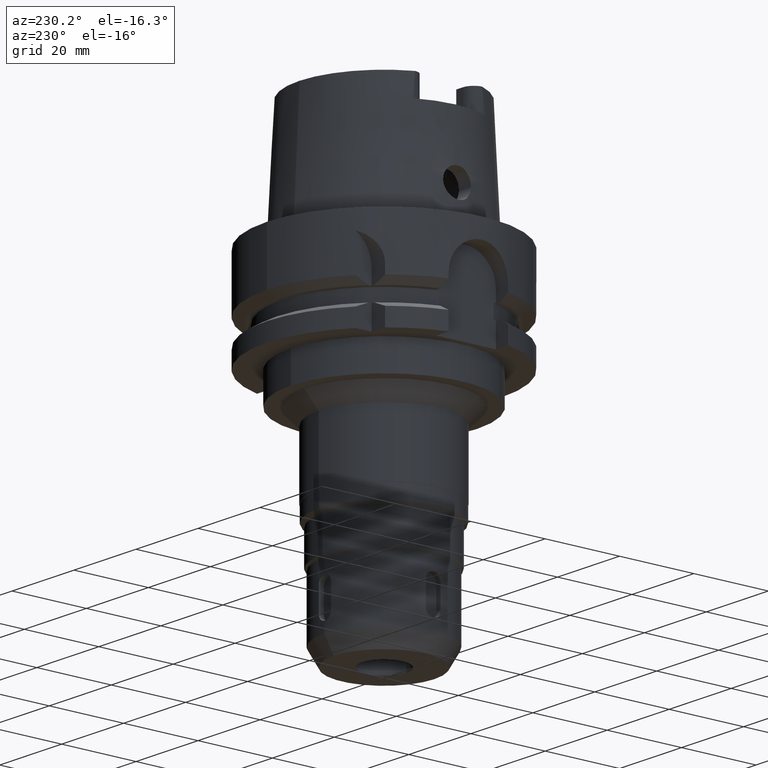
[diagram: clean part render]
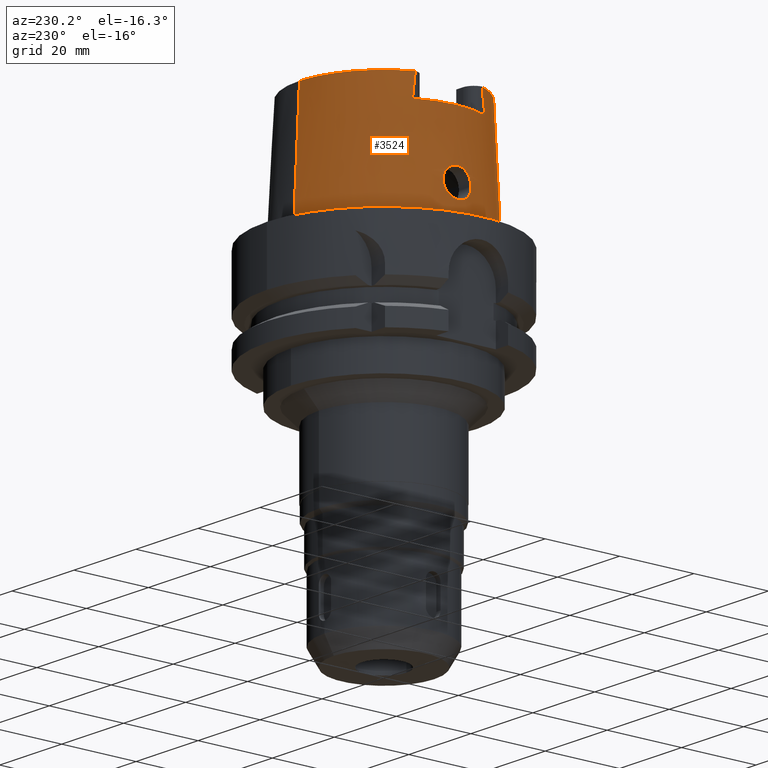
[diagram: same view with one face highlighted and labeled with its STEP entity id]
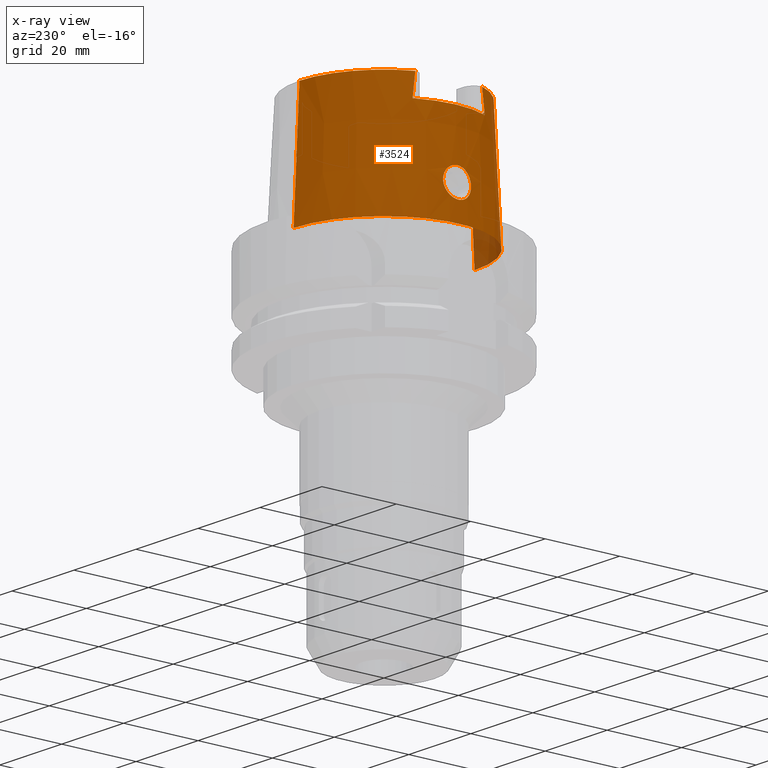
[diagram: x-ray of the same camera — body ghosted, the highlighted face saturated]
A machine part, auxiliary view. The second image highlights one B-rep face of the part: STEP entity #3524.
The next image is the same camera in x-ray: the body ghosted, the highlighted face saturated — about 3% of this face is hidden behind the body in this view.
In plain terms, the highlighted conical surface has half-angle 2.862 deg.
Its self-contained STEP definition (entity closure, byte-faithful):
#69=CARTESIAN_POINT('',(0.E0,0.E0,2.6E1));
#70=DIRECTION('',(0.E0,0.E0,-1.E0));
#71=DIRECTION('',(-9.068002397791E-1,-4.215605829967E-1,0.E0));
#72=AXIS2_PLACEMENT_3D('',#69,#70,#71);
#146=CARTESIAN_POINT('',(0.E0,0.E0,3.2E1));
#147=DIRECTION('',(0.E0,0.E0,-1.E0));
#148=DIRECTION('',(0.E0,-1.E0,0.E0));
#149=AXIS2_PLACEMENT_3D('',#146,#147,#148);
#168=CARTESIAN_POINT('',(-2.086999931532E1,-9.702216590714E0,2.6E1));
#169=CARTESIAN_POINT('',(-2.086999931532E1,-9.642048820586E0,2.650727061243E1));
#170=CARTESIAN_POINT('',(-2.087000004782E1,-9.521000158515E0,2.752034963127E1));
#171=CARTESIAN_POINT('',(-2.087000085966E1,-9.336892232922E0,2.903557625831E1));
#172=CARTESIAN_POINT('',(-2.086999796226E1,-9.212636785735E0,3.004273970224E1));
#173=CARTESIAN_POINT('',(-2.086999796226E1,-9.150006002723E0,3.054568949562E1));
#178=CARTESIAN_POINT('',(-2.086999796226E1,-9.150006002723E0,3.054568949562E1));
#179=CARTESIAN_POINT('',(-2.086999799209E1,-9.129916591506E0,3.070701481375E1));
#180=CARTESIAN_POINT('',(-2.086958253860E1,-9.090608124895E0,3.102977317762E1));
#181=CARTESIAN_POINT('',(-2.086782946572E1,-9.033594820122E0,3.151460124352E1));
#182=CARTESIAN_POINT('',(-2.086599284936E1,-8.997161997811E0,3.183814979310E1));
#183=CARTESIAN_POINT('',(-2.086492401365E1,-8.979173041315E0,3.2E1));
#188=DIRECTION('',(0.E0,-4.993926899646E-2,-9.987522562738E-1));
#189=VECTOR('',#188,3.203997768114E1);
#190=CARTESIAN_POINT('',(0.E0,-2.271498175923E1,3.2E1));
#191=LINE('',#190,#189);
#195=CARTESIAN_POINT('',(-2.086492889908E1,8.979147578632E0,3.2E1));
#196=CARTESIAN_POINT('',(-2.086599795702E1,8.997136344425E0,3.183814782322E1));
#197=CARTESIAN_POINT('',(-2.086783017122E1,9.033655975386E0,3.151459743567E1));
#198=CARTESIAN_POINT('',(-2.086958173453E1,9.090663948326E0,3.102981662359E1));
#199=CARTESIAN_POINT('',(-2.087000256094E1,9.129899807872E0,3.070693419092E1));
#200=CARTESIAN_POINT('',(-2.087000266643E1,9.149988969842E0,3.054560895604E1));
#205=CARTESIAN_POINT('',(-2.087000266643E1,9.149988969842E0,3.054560895604E1));
#206=CARTESIAN_POINT('',(-2.087000266643E1,9.212602066600E0,3.004280293648E1));
#207=CARTESIAN_POINT('',(-2.086999914860E1,9.336927771861E0,2.903562856499E1));
#208=CARTESIAN_POINT('',(-2.086999898025E1,9.521027715148E0,2.752042413741E1));
#209=CARTESIAN_POINT('',(-2.087000294700E1,9.642028220365E0,2.650729690902E1));
#210=CARTESIAN_POINT('',(-2.087000294700E1,9.702199254898E0,2.6E1));
#215=CARTESIAN_POINT('',(-2.405252611747E1,0.E0,5.25E0));
#216=CARTESIAN_POINT('',(-2.405252611747E1,-3.237039189191E-1,5.25E0));
#217=CARTESIAN_POINT('',(-2.403489738858E1,-9.721933438210E-1,
5.334615960043E0));
#218=CARTESIAN_POINT('',(-2.396130820310E1,-1.879360501514E0,5.705628810175E0));
#219=CARTESIAN_POINT('',(-2.385425719589E1,-2.670639452682E0,6.305769057191E0));
#220=CARTESIAN_POINT('',(-2.373651116925E1,-3.280288625783E0,7.093983568563E0));
#221=CARTESIAN_POINT('',(-2.363214102924E1,-3.664501559971E0,8.017740717521E0));
#222=CARTESIAN_POINT('',(-2.356136461873E1,-3.793047975873E0,9.004209857092E0));
#223=CARTESIAN_POINT('',(-2.353283246127E1,-3.663299794969E0,9.982837387396E0));
#224=CARTESIAN_POINT('',(-2.354380669911E1,-3.285058254023E0,1.089542380262E1));
#225=CARTESIAN_POINT('',(-2.358197325135E1,-2.687116559649E0,1.167666783214E1));
#226=CARTESIAN_POINT('',(-2.362969583036E1,-1.902041496873E0,1.228210256951E1));
#227=CARTESIAN_POINT('',(-2.366790186949E1,-9.841550723414E-1,
1.266346798314E1));
#228=CARTESIAN_POINT('',(-2.367751368058E1,-3.280594198357E-1,1.275E1));
#229=CARTESIAN_POINT('',(-2.367751368058E1,0.E0,1.275E1));
#234=CARTESIAN_POINT('',(-2.367751368058E1,0.E0,1.275E1));
#235=CARTESIAN_POINT('',(-2.367751368058E1,3.270533127872E-1,1.275E1));
#236=CARTESIAN_POINT('',(-2.366795277488E1,9.816505901341E-1,1.266390561992E1));
#237=CARTESIAN_POINT('',(-2.362991515665E1,1.897937379690E0,1.228442938621E1));
#238=CARTESIAN_POINT('',(-2.358206416603E1,2.685842854891E0,1.167860906905E1));
#239=CARTESIAN_POINT('',(-2.354364837303E1,3.287422268718E0,1.089218611414E1));
#240=CARTESIAN_POINT('',(-2.353290289236E1,3.664484137836E0,9.977590722086E0));
#241=CARTESIAN_POINT('',(-2.356146202519E1,3.792244213441E0,9.004912952445E0));
#242=CARTESIAN_POINT('',(-2.363121464345E1,3.666523218123E0,8.029413840503E0));
#243=CARTESIAN_POINT('',(-2.373400940408E1,3.290819240531E0,7.113388045270E0));
#244=CARTESIAN_POINT('',(-2.385152743798E1,2.687421573002E0,6.322032636993E0));
#245=CARTESIAN_POINT('',(-2.396002366972E1,1.892931790251E0,5.712148441573E0));
#246=CARTESIAN_POINT('',(-2.403491940658E1,9.746733532678E-1,5.334470639492E0));
#247=CARTESIAN_POINT('',(-2.405252611747E1,3.239487688354E-1,5.25E0));
#248=CARTESIAN_POINT('',(-2.405252611747E1,0.E0,5.25E0));
#273=DIRECTION('',(0.E0,4.993926899646E-2,-9.987522562738E-1));
#274=VECTOR('',#273,3.203997768114E1);
#275=CARTESIAN_POINT('',(0.E0,2.271498175923E1,3.2E1));
#276=LINE('',#275,#274);
#2345=CARTESIAN_POINT('',(0.E0,0.E0,-9.094947017729E-13));
#2346=DIRECTION('',(0.E0,0.E0,1.E0));
#2347=DIRECTION('',(0.E0,1.E0,0.E0));
#2348=AXIS2_PLACEMENT_3D('',#2345,#2346,#2347);
#2873=CARTESIAN_POINT('',(0.E0,0.E0,3.2E1));
#2874=DIRECTION('',(0.E0,0.E0,-1.E0));
#2875=DIRECTION('',(-9.185535885356E-1,3.952964773285E-1,0.E0));
#2876=AXIS2_PLACEMENT_3D('',#2873,#2874,#2875);
#2975=CARTESIAN_POINT('',(-2.086999931532E1,-9.702216590714E0,2.6E1));
#2976=VERTEX_POINT('',#2975);
#2977=CARTESIAN_POINT('',(-2.087E1,9.702213322401E0,2.6E1));
#2978=VERTEX_POINT('',#2977);
#2987=CARTESIAN_POINT('',(-2.086492800846E1,8.979152272005E0,3.2E1));
#2988=VERTEX_POINT('',#2987);
#2989=CARTESIAN_POINT('',(0.E0,2.271498175923E1,3.2E1));
#2990=VERTEX_POINT('',#2989);
#2997=CARTESIAN_POINT('',(-2.086492800846E1,-8.979152272005E0,3.2E1));
#2998=VERTEX_POINT('',#2997);
#3005=CARTESIAN_POINT('',(0.E0,-2.271498175923E1,3.2E1));
#3006=VERTEX_POINT('',#3005);
#3007=VERTEX_POINT('',#200);
#3008=VERTEX_POINT('',#173);
#3009=CARTESIAN_POINT('',(0.E0,-2.431503482329E1,-6.039613253961E-13));
#3010=VERTEX_POINT('',#3009);
#3011=CARTESIAN_POINT('',(0.E0,2.431503482329E1,-9.094947017729E-13));
#3012=VERTEX_POINT('',#3011);
#3013=VERTEX_POINT('',#215);
#3014=VERTEX_POINT('',#229);
#3494=CARTESIAN_POINT('',(0.E0,0.E0,1.6E1));
#3495=DIRECTION('',(0.E0,0.E0,-1.E0));
#3496=DIRECTION('',(0.E0,-1.E0,0.E0));
#3497=AXIS2_PLACEMENT_3D('',#3494,#3495,#3496);
#3498=CONICAL_SURFACE('',#3497,2.351500829126E1,2.8625E0);
#3499=ORIENTED_EDGE('',*,*,#3432,.F.);
#3501=ORIENTED_EDGE('',*,*,#3500,.T.);
#3502=ORIENTED_EDGE('',*,*,#3484,.T.);
#3503=ORIENTED_EDGE('',*,*,#3474,.F.);
#3505=ORIENTED_EDGE('',*,*,#3504,.T.);
#3507=ORIENTED_EDGE('',*,*,#3506,.F.);
#3509=ORIENTED_EDGE('',*,*,#3508,.F.);
#3511=ORIENTED_EDGE('',*,*,#3510,.F.);
#3513=ORIENTED_EDGE('',*,*,#3512,.T.);
#3515=ORIENTED_EDGE('',*,*,#3514,.T.);
#3516=EDGE_LOOP('',(#3499,#3501,#3502,#3503,#3505,#3507,#3509,#3511,#3513,
#3515));
#3517=FACE_OUTER_BOUND('',#3516,.F.);
#3519=ORIENTED_EDGE('',*,*,#3518,.T.);
#3521=ORIENTED_EDGE('',*,*,#3520,.T.);
#3522=EDGE_LOOP('',(#3519,#3521));
#3523=FACE_BOUND('',#3522,.F.);
#73=CIRCLE('',#72,2.301499170874E1);
#150=CIRCLE('',#149,2.271498175923E1);
#174=B_SPLINE_CURVE_WITH_KNOTS('',3,(#168,#169,#170,#171,#172,#173),
.UNSPECIFIED.,.F.,.F.,(4,1,1,4),(0.E0,3.333333333333E-1,6.666666666667E-1,1.E0),
.UNSPECIFIED.);
#184=B_SPLINE_CURVE_WITH_KNOTS('',3,(#178,#179,#180,#181,#182,#183),
.UNSPECIFIED.,.F.,.F.,(4,1,1,4),(0.E0,3.333333333333E-1,6.666666666667E-1,1.E0),
.UNSPECIFIED.);
#201=B_SPLINE_CURVE_WITH_KNOTS('',3,(#195,#196,#197,#198,#199,#200),
.UNSPECIFIED.,.F.,.F.,(4,1,1,4),(0.E0,3.333333333333E-1,6.666666666667E-1,1.E0),
.UNSPECIFIED.);
#211=B_SPLINE_CURVE_WITH_KNOTS('',3,(#205,#206,#207,#208,#209,#210),
.UNSPECIFIED.,.F.,.F.,(4,1,1,4),(0.E0,3.333333333333E-1,6.666666666667E-1,1.E0),
.UNSPECIFIED.);
#230=B_SPLINE_CURVE_WITH_KNOTS('',3,(#215,#216,#217,#218,#219,#220,#221,#222,
#223,#224,#225,#226,#227,#228,#229),.UNSPECIFIED.,.F.,.F.,(4,1,1,1,1,1,1,1,1,1,
1,1,4),(0.E0,8.333333333333E-2,1.666666666667E-1,2.5E-1,3.333333333333E-1,
4.166666666667E-1,5.E-1,5.833333333333E-1,6.666666666667E-1,7.5E-1,
8.333333333333E-1,9.166666666667E-1,1.E0),.UNSPECIFIED.);
#249=B_SPLINE_CURVE_WITH_KNOTS('',3,(#234,#235,#236,#237,#238,#239,#240,#241,
#242,#243,#244,#245,#246,#247,#248),.UNSPECIFIED.,.F.,.F.,(4,1,1,1,1,1,1,1,1,1,
1,1,4),(0.E0,8.333333333333E-2,1.666666666667E-1,2.5E-1,3.333333333333E-1,
4.166666666667E-1,5.E-1,5.833333333333E-1,6.666666666667E-1,7.5E-1,
8.333333333333E-1,9.166666666667E-1,1.E0),.UNSPECIFIED.);
#2349=CIRCLE('',#2348,2.431503482329E1);
#2877=CIRCLE('',#2876,2.271498175923E1);
#3432=EDGE_CURVE('',#2976,#2978,#73,.T.);
#3474=EDGE_CURVE('',#3006,#2998,#150,.T.);
#3484=EDGE_CURVE('',#3008,#2998,#184,.T.);
#3500=EDGE_CURVE('',#2976,#3008,#174,.T.);
#3504=EDGE_CURVE('',#3006,#3010,#191,.T.);
#3506=EDGE_CURVE('',#3012,#3010,#2349,.T.);
#3508=EDGE_CURVE('',#2990,#3012,#276,.T.);
#3510=EDGE_CURVE('',#2988,#2990,#2877,.T.);
#3512=EDGE_CURVE('',#2988,#3007,#201,.T.);
#3514=EDGE_CURVE('',#3007,#2978,#211,.T.);
#3518=EDGE_CURVE('',#3013,#3014,#230,.T.);
#3520=EDGE_CURVE('',#3014,#3013,#249,.T.);
#3524=ADVANCED_FACE('',(#3517,#3523),#3498,.T.);